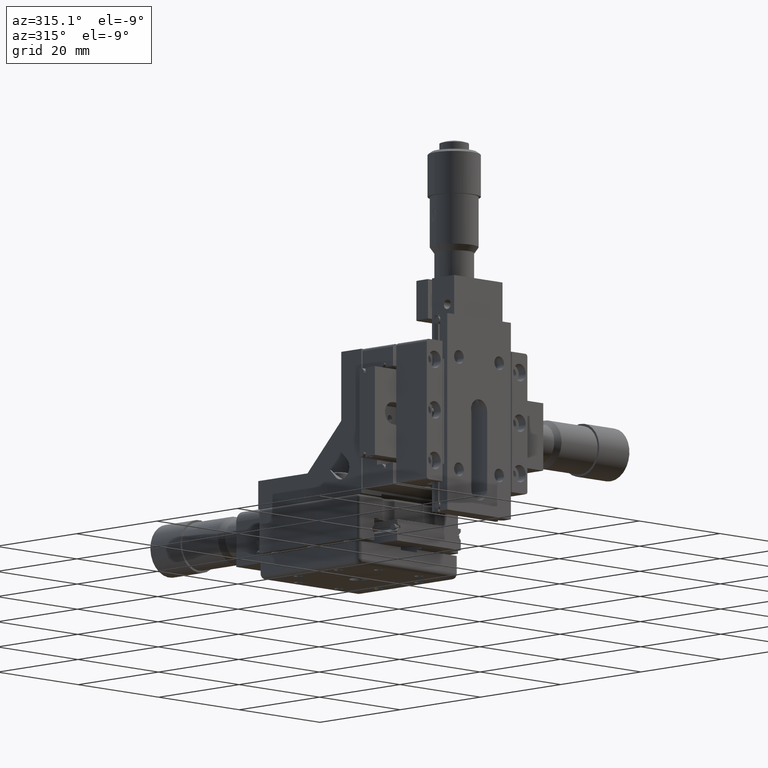
[diagram: clean part render]
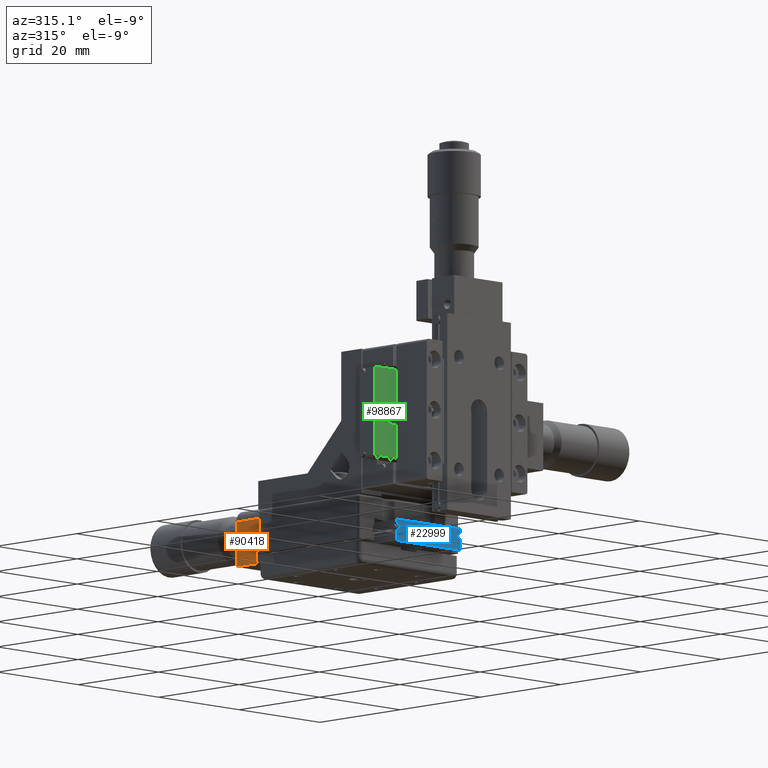
[diagram: same view with three faces highlighted in distinct colors, each labeled with its STEP entity id]
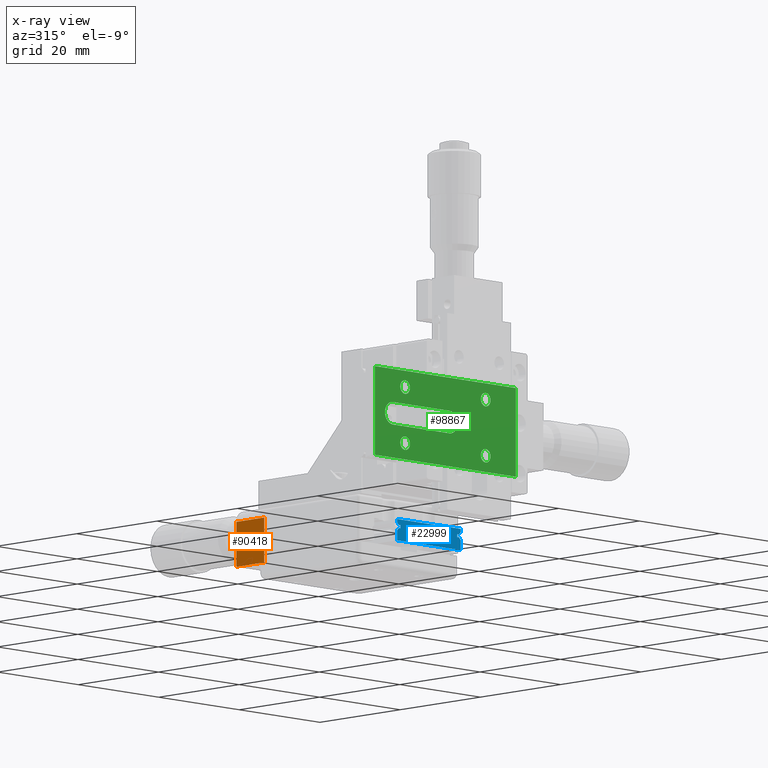
[diagram: x-ray of the same camera — body ghosted, the three highlighted faces saturated]
A machine part, auxiliary view with three faces highlighted in distinct colors.
The next image is the same camera in x-ray (body ghosted, the three faces saturated) — at least one of them is partly hidden behind the body in this view.
Their STEP definitions:

[orange] entity #90418 — the highlighted planar face has unit normal (1, -0, 0).
#378 = ORIENTED_EDGE ( 'NONE', *, *, #9242, .F. ) ;
#6458 = DIRECTION ( 'NONE',  ( 6.658216008616496400E-016, 1.000000000000000000, -1.583723319896012000E-015 ) ) ;
#9242 = EDGE_CURVE ( 'NONE', #35091, #83772, #18592, .T. ) ;
#15610 = CARTESIAN_POINT ( 'NONE',  ( -5.999999999999139400, 54.50000000000007800, -21.40000000000091900 ) ) ;
#15617 = EDGE_CURVE ( 'NONE', #112059, #75574, #77767, .T. ) ;
#16002 = DIRECTION ( 'NONE',  ( -1.176543750247916600E-015, 2.117645821199063000E-015, -1.000000000000000000 ) ) ;
#18592 = LINE ( 'NONE', #65776, #86832 ) ;
#20740 = CARTESIAN_POINT ( 'NONE',  ( -5.999999999999144700, 47.50000000000007800, -21.40000000000091900 ) ) ;
#24648 = CARTESIAN_POINT ( 'NONE',  ( -5.999999999999131400, 54.50000000000012100, -13.40000000000099200 ) ) ;
#26448 = CARTESIAN_POINT ( 'NONE',  ( -5.999999999999144700, 47.50000000000007800, -21.40000000000091900 ) ) ;
#31831 = EDGE_CURVE ( 'NONE', #35091, #112059, #103292, .T. ) ;
#35091 = VERTEX_POINT ( 'NONE', #61233 ) ;
#42196 = DIRECTION ( 'NONE',  ( 6.658216008616496400E-016, 1.000000000000000000, -1.583723319896012000E-015 ) ) ;
#44227 = ORIENTED_EDGE ( 'NONE', *, *, #82985, .F. ) ;
#47449 = VECTOR ( 'NONE', #42196, 1000.000000000000000 ) ;
#50554 = CARTESIAN_POINT ( 'NONE',  ( -5.999999999999135800, 47.50000000000012100, -13.40000000000097200 ) ) ;
#58742 = CARTESIAN_POINT ( 'NONE',  ( -5.999999999999144700, 47.50000000000007800, -21.40000000000091900 ) ) ;
#61233 = CARTESIAN_POINT ( 'NONE',  ( -5.999999999999135800, 47.50000000000012100, -13.40000000000097200 ) ) ;
#62405 = VECTOR ( 'NONE', #6458, 1000.000000000000000 ) ;
#64065 = VECTOR ( 'NONE', #16002, 1000.000000000000000 ) ;
#65776 = CARTESIAN_POINT ( 'NONE',  ( -5.999999999999144700, 47.50000000000007800, -21.40000000000091900 ) ) ;
#70281 = DIRECTION ( 'NONE',  ( 6.658216008616497400E-016, 1.000000000000000000, -1.583723319896012200E-015 ) ) ;
#73947 = ORIENTED_EDGE ( 'NONE', *, *, #15617, .T. ) ;
#75574 = VERTEX_POINT ( 'NONE', #88300 ) ;
#77767 = LINE ( 'NONE', #15610, #64065 ) ;
#79795 = PLANE ( 'NONE',  #89192 ) ;
#82985 = EDGE_CURVE ( 'NONE', #83772, #75574, #104750, .T. ) ;
#83772 = VERTEX_POINT ( 'NONE', #20740 ) ;
#86832 = VECTOR ( 'NONE', #108860, 1000.000000000000000 ) ;
#88270 = DIRECTION ( 'NONE',  ( 1.000000000000000000, -6.658216008616488500E-016, 5.795404501557302800E-016 ) ) ;
#88300 = CARTESIAN_POINT ( 'NONE',  ( -5.999999999999139400, 54.50000000000007800, -21.40000000000091900 ) ) ;
#89192 = AXIS2_PLACEMENT_3D ( 'NONE', #26448, #88270, #70281 ) ;
#90418 = ADVANCED_FACE ( 'NONE', ( #110518 ), #79795, .F. ) ;
#97440 = ORIENTED_EDGE ( 'NONE', *, *, #31831, .T. ) ;
#103292 = LINE ( 'NONE', #50554, #47449 ) ;
#104750 = LINE ( 'NONE', #58742, #62405 ) ;
#108860 = DIRECTION ( 'NONE',  ( -1.176543750247916600E-015, 2.117645821199063000E-015, -1.000000000000000000 ) ) ;
#110518 = FACE_OUTER_BOUND ( 'NONE', #113054, .T. ) ;
#112059 = VERTEX_POINT ( 'NONE', #24648 ) ;
#113054 = EDGE_LOOP ( 'NONE', ( #378, #97440, #73947, #44227 ) ) ;

[blue] entity #22999 — the highlighted planar face has unit normal (0, -1, 0).
#410 = CARTESIAN_POINT ( 'NONE',  ( -7.439999999998280900, 12.50000000000005000, -18.85000000000087200 ) ) ;
#999 = CARTESIAN_POINT ( 'NONE',  ( 7.900000000001725200, 12.50000000000005000, -17.80000000000087800 ) ) ;
#1367 = VECTOR ( 'NONE', #97283, 1000.000000000000000 ) ;
#1673 = VERTEX_POINT ( 'NONE', #20724 ) ;
#2241 = LINE ( 'NONE', #74608, #59626 ) ;
#5464 = VECTOR ( 'NONE', #49975, 1000.000000000000000 ) ;
#5595 = CARTESIAN_POINT ( 'NONE',  ( -7.899999999998278200, 12.50000000000002500, -17.80000000000087500 ) ) ;
#6962 = EDGE_CURVE ( 'NONE', #49206, #40940, #23608, .T. ) ;
#7200 = VECTOR ( 'NONE', #47539, 1000.000000000000000 ) ;
#8789 = ORIENTED_EDGE ( 'NONE', *, *, #6962, .T. ) ;
#9916 = EDGE_CURVE ( 'NONE', #66074, #63936, #58087, .T. ) ;
#9965 = CARTESIAN_POINT ( 'NONE',  ( 7.050000000001729100, 12.50000000000005000, -18.85000000000087900 ) ) ;
#10490 = DIRECTION ( 'NONE',  ( 1.000000000000000000, 3.122139134447230400E-019, -3.330669073875469600E-016 ) ) ;
#10895 = LINE ( 'NONE', #71834, #74967 ) ;
#11270 = CARTESIAN_POINT ( 'NONE',  ( -7.439999999998280900, 12.50000000000005000, -19.35000000000087200 ) ) ;
#12213 = VECTOR ( 'NONE', #50375, 1000.000000000000000 ) ;
#12313 = LINE ( 'NONE', #410, #1367 ) ;
#14181 = CARTESIAN_POINT ( 'NONE',  ( -7.899999999998265700, 12.50000000000005000, -18.39000000000087100 ) ) ;
#14253 = DIRECTION ( 'NONE',  ( 3.330669073875469600E-016, -3.872476710863205500E-015, 1.000000000000000000 ) ) ;
#15264 = VECTOR ( 'NONE', #18552, 1000.000000000000000 ) ;
#16583 = CARTESIAN_POINT ( 'NONE',  ( -7.899999999998280000, 12.50000000000002800, -21.60000000000087200 ) ) ;
#16668 = ORIENTED_EDGE ( 'NONE', *, *, #94349, .T. ) ;
#16737 = CARTESIAN_POINT ( 'NONE',  ( 7.440000000001727000, 12.50000000000005000, -18.85000000000087500 ) ) ;
#17379 = ORIENTED_EDGE ( 'NONE', *, *, #24406, .T. ) ;
#18013 = EDGE_CURVE ( 'NONE', #63936, #49206, #2241, .T. ) ;
#18204 = EDGE_CURVE ( 'NONE', #66859, #18975, #103261, .T. ) ;
#18552 = DIRECTION ( 'NONE',  ( -1.000000000000000000, -3.122139134447230400E-019, 3.330669073875469600E-016 ) ) ;
#18975 = VERTEX_POINT ( 'NONE', #26704 ) ;
#19413 = LINE ( 'NONE', #999, #15264 ) ;
#19739 = CARTESIAN_POINT ( 'NONE',  ( -7.439999999998280900, 12.50000000000005000, -18.85000000000087200 ) ) ;
#20724 = CARTESIAN_POINT ( 'NONE',  ( 7.900000000001723400, 12.50000000000005000, -19.81000000000087600 ) ) ;
#22226 = VECTOR ( 'NONE', #75297, 1000.000000000000000 ) ;
#22396 = DIRECTION ( 'NONE',  ( -1.000000000000000000, -3.122139134619241400E-019, 4.781075820148614200E-015 ) ) ;
#22999 = ADVANCED_FACE ( 'NONE', ( #101716 ), #99284, .T. ) ;
#23608 = LINE ( 'NONE', #11270, #7200 ) ;
#24406 = EDGE_CURVE ( 'NONE', #69206, #62733, #86042, .T. ) ;
#26031 = ORIENTED_EDGE ( 'NONE', *, *, #91000, .T. ) ;
#26704 = CARTESIAN_POINT ( 'NONE',  ( -7.899999999998265700, 12.50000000000005000, -18.39000000000087100 ) ) ;
#27351 = VECTOR ( 'NONE', #86833, 1000.000000000000000 ) ;
#28637 = EDGE_LOOP ( 'NONE', ( #33459, #8789, #101765, #84042, #109002, #65898, #16668, #60646, #17379, #47360, #40051, #104639, #75306, #72437, #26031, #37749 ) ) ;
#28949 = LINE ( 'NONE', #73821, #72543 ) ;
#29737 = EDGE_CURVE ( 'NONE', #18975, #113162, #74619, .T. ) ;
#32369 = CARTESIAN_POINT ( 'NONE',  ( -7.899999999998280000, 12.50000000000005000, -19.81000000000088000 ) ) ;
#32729 = DIRECTION ( 'NONE',  ( -3.330669073875469600E-016, 3.872476710863205500E-015, -1.000000000000000000 ) ) ;
#32874 = CARTESIAN_POINT ( 'NONE',  ( -7.049999999998282100, 12.50000000000005000, -18.85000000000087200 ) ) ;
#33459 = ORIENTED_EDGE ( 'NONE', *, *, #18013, .T. ) ;
#35812 = EDGE_CURVE ( 'NONE', #65957, #100982, #10895, .T. ) ;
#37310 = LINE ( 'NONE', #49818, #22226 ) ;
#37749 = ORIENTED_EDGE ( 'NONE', *, *, #9916, .T. ) ;
#38249 = EDGE_CURVE ( 'NONE', #100982, #1673, #92625, .T. ) ;
#39171 = VERTEX_POINT ( 'NONE', #43656 ) ;
#40051 = ORIENTED_EDGE ( 'NONE', *, *, #112937, .T. ) ;
#40261 = CARTESIAN_POINT ( 'NONE',  ( 7.900000000001725200, 12.50000000000005000, -17.80000000000087800 ) ) ;
#40940 = VERTEX_POINT ( 'NONE', #32369 ) ;
#41210 = CARTESIAN_POINT ( 'NONE',  ( 7.900000000001737600, 12.50000000000005000, -18.39000000000087800 ) ) ;
#43655 = EDGE_CURVE ( 'NONE', #58960, #66859, #19413, .T. ) ;
#43656 = CARTESIAN_POINT ( 'NONE',  ( 7.050000000001729100, 12.50000000000005000, -19.35000000000087900 ) ) ;
#45219 = CARTESIAN_POINT ( 'NONE',  ( -7.049999999998282100, 12.50000000000005000, -19.35000000000087500 ) ) ;
#45873 = VECTOR ( 'NONE', #111334, 1000.000000000000000 ) ;
#46326 = LINE ( 'NONE', #90423, #83146 ) ;
#47360 = ORIENTED_EDGE ( 'NONE', *, *, #67931, .T. ) ;
#47539 = DIRECTION ( 'NONE',  ( -0.7071067811865438000, 2.738033773662987800E-015, -0.7071067811865513500 ) ) ;
#49206 = VERTEX_POINT ( 'NONE', #71364 ) ;
#49818 = CARTESIAN_POINT ( 'NONE',  ( -7.899999999998280000, 12.50000000000005000, -19.81000000000088000 ) ) ;
#49975 = DIRECTION ( 'NONE',  ( 3.330669073875469600E-016, -3.872476710863205500E-015, 1.000000000000000000 ) ) ;
#50042 = CARTESIAN_POINT ( 'NONE',  ( -7.049999999998282100, 12.50000000000005000, -18.85000000000087200 ) ) ;
#50375 = DIRECTION ( 'NONE',  ( -0.7071067811865483500, -2.738475310813724600E-015, 0.7071067811865468000 ) ) ;
#50463 = AXIS2_PLACEMENT_3D ( 'NONE', #91321, #107618, #82883 ) ;
#50794 = EDGE_CURVE ( 'NONE', #1673, #62064, #96822, .T. ) ;
#54657 = LINE ( 'NONE', #41210, #5464 ) ;
#56596 = EDGE_CURVE ( 'NONE', #39171, #69206, #28949, .T. ) ;
#58087 = LINE ( 'NONE', #32874, #45873 ) ;
#58960 = VERTEX_POINT ( 'NONE', #40261 ) ;
#59626 = VECTOR ( 'NONE', #22396, 1000.000000000000000 ) ;
#60646 = ORIENTED_EDGE ( 'NONE', *, *, #56596, .T. ) ;
#62064 = VERTEX_POINT ( 'NONE', #80199 ) ;
#62733 = VERTEX_POINT ( 'NONE', #16737 ) ;
#63936 = VERTEX_POINT ( 'NONE', #45219 ) ;
#65898 = ORIENTED_EDGE ( 'NONE', *, *, #50794, .T. ) ;
#65957 = VERTEX_POINT ( 'NONE', #16583 ) ;
#66074 = VERTEX_POINT ( 'NONE', #50042 ) ;
#66859 = VERTEX_POINT ( 'NONE', #81973 ) ;
#67447 = CARTESIAN_POINT ( 'NONE',  ( 7.900000000001723400, 12.50000000000005000, -19.81000000000087600 ) ) ;
#67681 = CARTESIAN_POINT ( 'NONE',  ( 7.050000000001729100, 12.50000000000005000, -18.85000000000087900 ) ) ;
#67911 = VECTOR ( 'NONE', #14253, 1000.000000000000000 ) ;
#67931 = EDGE_CURVE ( 'NONE', #62733, #81449, #46326, .T. ) ;
#69206 = VERTEX_POINT ( 'NONE', #9965 ) ;
#71364 = CARTESIAN_POINT ( 'NONE',  ( -7.439999999998280900, 12.50000000000005000, -19.35000000000087200 ) ) ;
#71834 = CARTESIAN_POINT ( 'NONE',  ( -7.899999999998280000, 12.50000000000002800, -21.60000000000087200 ) ) ;
#72437 = ORIENTED_EDGE ( 'NONE', *, *, #29737, .T. ) ;
#72543 = VECTOR ( 'NONE', #91481, 1000.000000000000000 ) ;
#73821 = CARTESIAN_POINT ( 'NONE',  ( 7.050000000001729100, 12.50000000000005000, -19.35000000000087900 ) ) ;
#74094 = CARTESIAN_POINT ( 'NONE',  ( 7.900000000001723400, 12.50000000000002800, -21.60000000000087900 ) ) ;
#74608 = CARTESIAN_POINT ( 'NONE',  ( -7.049999999998282100, 12.50000000000005000, -19.35000000000087500 ) ) ;
#74619 = LINE ( 'NONE', #14181, #84183 ) ;
#74776 = CARTESIAN_POINT ( 'NONE',  ( 7.900000000001723400, 12.50000000000002800, -21.60000000000087900 ) ) ;
#74967 = VECTOR ( 'NONE', #10490, 1000.000000000000000 ) ;
#75297 = DIRECTION ( 'NONE',  ( -3.330669073875469600E-016, 3.872476710863205500E-015, -1.000000000000000000 ) ) ;
#75306 = ORIENTED_EDGE ( 'NONE', *, *, #18204, .T. ) ;
#77490 = CARTESIAN_POINT ( 'NONE',  ( 7.440000000001727000, 12.50000000000005000, -19.35000000000087900 ) ) ;
#78640 = LINE ( 'NONE', #77490, #107245 ) ;
#80199 = CARTESIAN_POINT ( 'NONE',  ( 7.440000000001727000, 12.50000000000005000, -19.35000000000087900 ) ) ;
#81449 = VERTEX_POINT ( 'NONE', #90264 ) ;
#81973 = CARTESIAN_POINT ( 'NONE',  ( -7.899999999998278200, 12.50000000000002500, -17.80000000000087500 ) ) ;
#82883 = DIRECTION ( 'NONE',  ( 1.000000000000000000, 3.122139134447230400E-019, -3.330669073875469600E-016 ) ) ;
#83146 = VECTOR ( 'NONE', #89670, 1000.000000000000000 ) ;
#84042 = ORIENTED_EDGE ( 'NONE', *, *, #35812, .T. ) ;
#84183 = VECTOR ( 'NONE', #101491, 1000.000000000000100 ) ;
#86042 = LINE ( 'NONE', #67681, #27351 ) ;
#86833 = DIRECTION ( 'NONE',  ( 1.000000000000000000, 3.122139134275219300E-019, 4.114942005373520300E-015 ) ) ;
#87057 = EDGE_CURVE ( 'NONE', #40940, #65957, #37310, .T. ) ;
#89670 = DIRECTION ( 'NONE',  ( 0.7071067811865468000, -2.738033773662976400E-015, 0.7071067811865483500 ) ) ;
#90264 = CARTESIAN_POINT ( 'NONE',  ( 7.900000000001737600, 12.50000000000005000, -18.39000000000087800 ) ) ;
#90423 = CARTESIAN_POINT ( 'NONE',  ( 7.440000000001727000, 12.50000000000005000, -18.85000000000087500 ) ) ;
#91000 = EDGE_CURVE ( 'NONE', #113162, #66074, #12313, .T. ) ;
#91321 = CARTESIAN_POINT ( 'NONE',  ( 1.720851151912477900E-012, 12.50000000000002800, -21.60000000000085100 ) ) ;
#91481 = DIRECTION ( 'NONE',  ( 3.330669073875469600E-016, -3.872476710863205500E-015, 1.000000000000000000 ) ) ;
#92625 = LINE ( 'NONE', #74094, #67911 ) ;
#94349 = EDGE_CURVE ( 'NONE', #62064, #39171, #78640, .T. ) ;
#95462 = DIRECTION ( 'NONE',  ( -1.000000000000000000, -3.122139134619241400E-019, 4.781075820148614200E-015 ) ) ;
#96822 = LINE ( 'NONE', #67447, #12213 ) ;
#97283 = DIRECTION ( 'NONE',  ( 1.000000000000000000, 3.122139134275219300E-019, 4.114942005373520300E-015 ) ) ;
#99284 = PLANE ( 'NONE',  #50463 ) ;
#100982 = VERTEX_POINT ( 'NONE', #74776 ) ;
#101491 = DIRECTION ( 'NONE',  ( 0.7071067811865450200, 2.738475310813735600E-015, -0.7071067811865501300 ) ) ;
#101716 = FACE_OUTER_BOUND ( 'NONE', #28637, .T. ) ;
#101765 = ORIENTED_EDGE ( 'NONE', *, *, #87057, .T. ) ;
#103261 = LINE ( 'NONE', #5595, #112743 ) ;
#104639 = ORIENTED_EDGE ( 'NONE', *, *, #43655, .T. ) ;
#107245 = VECTOR ( 'NONE', #95462, 1000.000000000000000 ) ;
#107618 = DIRECTION ( 'NONE',  ( 3.122139134458737800E-019, -1.000000000000000000, 3.454995251662828900E-015 ) ) ;
#109002 = ORIENTED_EDGE ( 'NONE', *, *, #38249, .T. ) ;
#111334 = DIRECTION ( 'NONE',  ( -3.330669073875469600E-016, 3.872476710863205500E-015, -1.000000000000000000 ) ) ;
#112743 = VECTOR ( 'NONE', #32729, 1000.000000000000000 ) ;
#112937 = EDGE_CURVE ( 'NONE', #81449, #58960, #54657, .T. ) ;
#113162 = VERTEX_POINT ( 'NONE', #19739 ) ;

[green] entity #98867 — the highlighted planar face has unit normal (0, 1, 0).
#724 = CARTESIAN_POINT ( 'NONE',  ( 17.55000000000086400, 8.399999999999961300, -7.900000000000005700 ) ) ;
#796 = CARTESIAN_POINT ( 'NONE',  ( 17.50000000000085600, 8.399999999999982600, 7.899999999999997700 ) ) ;
#802 = ORIENTED_EDGE ( 'NONE', *, *, #80588, .F. ) ;
#1526 = VERTEX_POINT ( 'NONE', #58339 ) ;
#1607 = AXIS2_PLACEMENT_3D ( 'NONE', #13835, #100385, #21450 ) ;
#1640 = VERTEX_POINT ( 'NONE', #8337 ) ;
#1642 = CARTESIAN_POINT ( 'NONE',  ( -17.49999999999918300, 8.400000000000075000, 7.900000000000003900 ) ) ;
#1806 = AXIS2_PLACEMENT_3D ( 'NONE', #93483, #75111, #22899 ) ;
#2030 = CARTESIAN_POINT ( 'NONE',  ( 11.20000000000086600, 8.399999999999991500, 4.999999999999994700 ) ) ;
#3836 = CARTESIAN_POINT ( 'NONE',  ( -12.99999999999914000, 8.400000000000055400, 2.000000000000000400 ) ) ;
#6484 = DIRECTION ( 'NONE',  ( -1.000000000000000000, 3.469446951953615000E-015, 1.665334536937730900E-016 ) ) ;
#6853 = DIRECTION ( 'NONE',  ( 3.619663162951473700E-015, -1.000000000000000000, -1.451879441389884900E-029 ) ) ;
#7991 = EDGE_CURVE ( 'NONE', #109141, #47400, #35318, .T. ) ;
#8227 = DIRECTION ( 'NONE',  ( 3.619663162951473700E-015, -1.000000000000000000, -1.451879441389884900E-029 ) ) ;
#8337 = CARTESIAN_POINT ( 'NONE',  ( -8.799999999999139200, 8.400000000000057200, 5.000000000000000900 ) ) ;
#8739 = CARTESIAN_POINT ( 'NONE',  ( 1.000000000000862600, 8.400000000000030600, 1.999999999999999600 ) ) ;
#9976 = CIRCLE ( 'NONE', #63883, 1.999999999999999600 ) ;
#12937 = AXIS2_PLACEMENT_3D ( 'NONE', #48719, #91839, #109628 ) ;
#13490 = CARTESIAN_POINT ( 'NONE',  ( 10.00000000000086500, 8.399999999999986100, -5.000000000000005300 ) ) ;
#13810 = VERTEX_POINT ( 'NONE', #91199 ) ;
#13835 = CARTESIAN_POINT ( 'NONE',  ( -9.999999999999138500, 8.400000000000051900, -4.999999999999999100 ) ) ;
#15568 = FACE_BOUND ( 'NONE', #108517, .T. ) ;
#16921 = CIRCLE ( 'NONE', #45787, 1.199999999999999700 ) ;
#18049 = CARTESIAN_POINT ( 'NONE',  ( 17.50000000000085600, 8.399999999999961300, -7.900000000000005700 ) ) ;
#18884 = DIRECTION ( 'NONE',  ( 1.665334536937737800E-016, -1.391599940616440900E-029, 1.000000000000000000 ) ) ;
#20109 = EDGE_CURVE ( 'NONE', #96543, #35495, #77675, .T. ) ;
#20307 = CIRCLE ( 'NONE', #1607, 1.199999999999999700 ) ;
#21450 = DIRECTION ( 'NONE',  ( -1.000000000000000000, 2.891205793294679000E-015, 0.0000000000000000000 ) ) ;
#21504 = VECTOR ( 'NONE', #65231, 1000.000000000000000 ) ;
#21781 = DIRECTION ( 'NONE',  ( -1.000000000000000000, 3.374741892187014100E-015, 1.665334536937730900E-016 ) ) ;
#22615 = DIRECTION ( 'NONE',  ( -1.000000000000000000, 2.891205793294679000E-015, 0.0000000000000000000 ) ) ;
#22899 = DIRECTION ( 'NONE',  ( -1.000000000000000000, 2.891205793294679000E-015, 0.0000000000000000000 ) ) ;
#24274 = ORIENTED_EDGE ( 'NONE', *, *, #47280, .F. ) ;
#24828 = CIRCLE ( 'NONE', #25372, 1.199999999999999700 ) ;
#25372 = AXIS2_PLACEMENT_3D ( 'NONE', #25425, #8227, #69255 ) ;
#25425 = CARTESIAN_POINT ( 'NONE',  ( 10.00000000000086500, 8.399999999999986100, -5.000000000000005300 ) ) ;
#25926 = LINE ( 'NONE', #92054, #103704 ) ;
#27726 = CARTESIAN_POINT ( 'NONE',  ( 1.000000000000861800, 8.400000000000005700, -1.999999999999999600 ) ) ;
#27827 = FACE_BOUND ( 'NONE', #105947, .T. ) ;
#28232 = CARTESIAN_POINT ( 'NONE',  ( -9.999999999999138500, 8.400000000000051900, -4.999999999999999100 ) ) ;
#28859 = ORIENTED_EDGE ( 'NONE', *, *, #67559, .F. ) ;
#29831 = DIRECTION ( 'NONE',  ( 1.000000000000000000, -3.374741892187014100E-015, -1.164742905298670400E-017 ) ) ;
#31210 = EDGE_CURVE ( 'NONE', #86853, #13810, #55582, .T. ) ;
#31237 = AXIS2_PLACEMENT_3D ( 'NONE', #96301, #78357, #44863 ) ;
#34308 = CARTESIAN_POINT ( 'NONE',  ( 8.800000000000865800, 8.399999999999989700, 4.999999999999994700 ) ) ;
#35268 = EDGE_CURVE ( 'NONE', #93625, #52575, #103820, .T. ) ;
#35318 = LINE ( 'NONE', #724, #53010 ) ;
#35495 = VERTEX_POINT ( 'NONE', #82280 ) ;
#35927 = EDGE_CURVE ( 'NONE', #47400, #42730, #94252, .T. ) ;
#37090 = EDGE_LOOP ( 'NONE', ( #78682, #112926 ) ) ;
#37896 = CARTESIAN_POINT ( 'NONE',  ( -12.99999999999914000, 8.400000000000075000, -1.999999999999999600 ) ) ;
#38582 = ORIENTED_EDGE ( 'NONE', *, *, #31210, .F. ) ;
#39241 = DIRECTION ( 'NONE',  ( 3.374741892187014100E-015, 1.000000000000000000, 1.335399198353345200E-029 ) ) ;
#39612 = CARTESIAN_POINT ( 'NONE',  ( 17.55000000000086400, 8.399999999999982600, 7.899999999999997700 ) ) ;
#41335 = CIRCLE ( 'NONE', #12937, 1.199999999999999700 ) ;
#41627 = VERTEX_POINT ( 'NONE', #112224 ) ;
#42256 = EDGE_CURVE ( 'NONE', #1640, #1526, #16921, .T. ) ;
#42730 = VERTEX_POINT ( 'NONE', #1642 ) ;
#43542 = DIRECTION ( 'NONE',  ( -1.000000000000000000, 3.374741892187014100E-015, 1.665334536937730900E-016 ) ) ;
#43993 = ORIENTED_EDGE ( 'NONE', *, *, #52250, .F. ) ;
#44863 = DIRECTION ( 'NONE',  ( -1.000000000000000000, 3.469446951953614200E-015, 1.665334536937731100E-016 ) ) ;
#45208 = ORIENTED_EDGE ( 'NONE', *, *, #42256, .F. ) ;
#45787 = AXIS2_PLACEMENT_3D ( 'NONE', #100706, #57633, #110191 ) ;
#47280 = EDGE_CURVE ( 'NONE', #52575, #93625, #24828, .T. ) ;
#47400 = VERTEX_POINT ( 'NONE', #87610 ) ;
#48101 = AXIS2_PLACEMENT_3D ( 'NONE', #39612, #39241, #73813 ) ;
#48719 = CARTESIAN_POINT ( 'NONE',  ( 10.00000000000086500, 8.399999999999986100, 4.999999999999994700 ) ) ;
#49804 = DIRECTION ( 'NONE',  ( -1.000000000000000000, 2.891205793294679000E-015, 0.0000000000000000000 ) ) ;
#50187 = DIRECTION ( 'NONE',  ( 3.619663162951473700E-015, -1.000000000000000000, -1.451879441389884900E-029 ) ) ;
#52250 = EDGE_CURVE ( 'NONE', #35495, #81371, #106093, .T. ) ;
#52575 = VERTEX_POINT ( 'NONE', #95756 ) ;
#53010 = VECTOR ( 'NONE', #43542, 1000.000000000000000 ) ;
#53784 = FACE_BOUND ( 'NONE', #37090, .T. ) ;
#53809 = DIRECTION ( 'NONE',  ( 3.619663162951473700E-015, -1.000000000000000000, -1.451879441389884900E-029 ) ) ;
#54271 = VECTOR ( 'NONE', #29831, 1000.000000000000000 ) ;
#55070 = EDGE_CURVE ( 'NONE', #113051, #96543, #95344, .T. ) ;
#55582 = CIRCLE ( 'NONE', #69326, 1.199999999999999700 ) ;
#56031 = EDGE_CURVE ( 'NONE', #1526, #1640, #93222, .T. ) ;
#56865 = ORIENTED_EDGE ( 'NONE', *, *, #98611, .F. ) ;
#56910 = DIRECTION ( 'NONE',  ( -1.665334536937737800E-016, 1.391599940616440900E-029, -1.000000000000000000 ) ) ;
#57633 = DIRECTION ( 'NONE',  ( 3.619663162951473700E-015, -1.000000000000000000, -1.451879441389884900E-029 ) ) ;
#57789 = CARTESIAN_POINT ( 'NONE',  ( 10.00000000000086500, 8.399999999999986100, 4.999999999999994700 ) ) ;
#57991 = CARTESIAN_POINT ( 'NONE',  ( 1.000000000000862200, 8.400000000000030600, -1.255190709069157700E-016 ) ) ;
#58339 = CARTESIAN_POINT ( 'NONE',  ( -11.19999999999913800, 8.400000000000055400, 5.000000000000000900 ) ) ;
#59230 = FACE_BOUND ( 'NONE', #110525, .T. ) ;
#61173 = CARTESIAN_POINT ( 'NONE',  ( 1.000000000000862200, 8.400000000000030600, -1.255190709069157700E-016 ) ) ;
#63230 = VECTOR ( 'NONE', #21781, 1000.000000000000000 ) ;
#63883 = AXIS2_PLACEMENT_3D ( 'NONE', #57991, #6853, #6484 ) ;
#65127 = VERTEX_POINT ( 'NONE', #796 ) ;
#65231 = DIRECTION ( 'NONE',  ( -1.000000000000000000, 3.374741892187014100E-015, 7.360183890930122000E-017 ) ) ;
#67559 = EDGE_CURVE ( 'NONE', #13810, #86853, #20307, .T. ) ;
#68696 = FACE_OUTER_BOUND ( 'NONE', #78153, .T. ) ;
#69255 = DIRECTION ( 'NONE',  ( -1.000000000000000000, 2.891205793294679000E-015, 0.0000000000000000000 ) ) ;
#69326 = AXIS2_PLACEMENT_3D ( 'NONE', #28232, #53809, #89659 ) ;
#69691 = VECTOR ( 'NONE', #18884, 1000.000000000000000 ) ;
#71617 = ORIENTED_EDGE ( 'NONE', *, *, #7991, .F. ) ;
#73813 = DIRECTION ( 'NONE',  ( -1.000000000000000000, 3.374741892187014100E-015, 1.665334536937730900E-016 ) ) ;
#74184 = AXIS2_PLACEMENT_3D ( 'NONE', #61173, #97008, #86776 ) ;
#74542 = ORIENTED_EDGE ( 'NONE', *, *, #98808, .T. ) ;
#75111 = DIRECTION ( 'NONE',  ( 3.619663162951473700E-015, -1.000000000000000000, -1.451879441389884900E-029 ) ) ;
#77063 = ORIENTED_EDGE ( 'NONE', *, *, #56031, .F. ) ;
#77675 = CIRCLE ( 'NONE', #31237, 2.000000000000000000 ) ;
#78153 = EDGE_LOOP ( 'NONE', ( #802, #74542, #96234, #71617 ) ) ;
#78357 = DIRECTION ( 'NONE',  ( 3.619663162951473700E-015, -1.000000000000000000, -1.451879441389884900E-029 ) ) ;
#78682 = ORIENTED_EDGE ( 'NONE', *, *, #91209, .F. ) ;
#79523 = CARTESIAN_POINT ( 'NONE',  ( -17.49999999999918300, 8.400000000000078500, -7.899999999999999500 ) ) ;
#80489 = CIRCLE ( 'NONE', #91346, 1.199999999999999700 ) ;
#80588 = EDGE_CURVE ( 'NONE', #65127, #109141, #25926, .T. ) ;
#81048 = EDGE_LOOP ( 'NONE', ( #24274, #95164 ) ) ;
#81371 = VERTEX_POINT ( 'NONE', #27726 ) ;
#81875 = VERTEX_POINT ( 'NONE', #2030 ) ;
#82280 = CARTESIAN_POINT ( 'NONE',  ( -12.99999999999914000, 8.400000000000075000, -1.999999999999999600 ) ) ;
#86535 = LINE ( 'NONE', #99983, #63230 ) ;
#86638 = CIRCLE ( 'NONE', #74184, 1.999999999999999600 ) ;
#86776 = DIRECTION ( 'NONE',  ( -1.000000000000000000, 3.469446951953615000E-015, 1.665334536937730900E-016 ) ) ;
#86853 = VERTEX_POINT ( 'NONE', #98637 ) ;
#87610 = CARTESIAN_POINT ( 'NONE',  ( -17.49999999999918300, 8.400000000000078500, -7.899999999999999500 ) ) ;
#89659 = DIRECTION ( 'NONE',  ( -1.000000000000000000, 2.891205793294679000E-015, 0.0000000000000000000 ) ) ;
#91199 = CARTESIAN_POINT ( 'NONE',  ( -8.799999999999139200, 8.400000000000057200, -4.999999999999999100 ) ) ;
#91209 = EDGE_CURVE ( 'NONE', #101767, #81875, #80489, .T. ) ;
#91346 = AXIS2_PLACEMENT_3D ( 'NONE', #57789, #50187, #49804 ) ;
#91839 = DIRECTION ( 'NONE',  ( 3.619663162951473700E-015, -1.000000000000000000, -1.451879441389884900E-029 ) ) ;
#92054 = CARTESIAN_POINT ( 'NONE',  ( 17.50000000000085600, 8.399999999999982600, 7.899999999999997700 ) ) ;
#92097 = DIRECTION ( 'NONE',  ( 3.619663162951473700E-015, -1.000000000000000000, -1.451879441389884900E-029 ) ) ;
#93222 = CIRCLE ( 'NONE', #1806, 1.199999999999999700 ) ;
#93483 = CARTESIAN_POINT ( 'NONE',  ( -9.999999999999138500, 8.400000000000051900, 5.000000000000000900 ) ) ;
#93625 = VERTEX_POINT ( 'NONE', #112107 ) ;
#94252 = LINE ( 'NONE', #79523, #69691 ) ;
#95164 = ORIENTED_EDGE ( 'NONE', *, *, #35268, .F. ) ;
#95344 = LINE ( 'NONE', #3836, #21504 ) ;
#95756 = CARTESIAN_POINT ( 'NONE',  ( 8.800000000000865800, 8.399999999999989700, -5.000000000000005300 ) ) ;
#96234 = ORIENTED_EDGE ( 'NONE', *, *, #35927, .F. ) ;
#96301 = CARTESIAN_POINT ( 'NONE',  ( -12.99999999999914000, 8.400000000000055400, 4.302114220422481600E-016 ) ) ;
#96543 = VERTEX_POINT ( 'NONE', #96633 ) ;
#96633 = CARTESIAN_POINT ( 'NONE',  ( -12.99999999999914000, 8.400000000000055400, 2.000000000000000400 ) ) ;
#97008 = DIRECTION ( 'NONE',  ( 3.619663162951473700E-015, -1.000000000000000000, -1.451879441389884900E-029 ) ) ;
#97433 = FACE_BOUND ( 'NONE', #81048, .T. ) ;
#97949 = ORIENTED_EDGE ( 'NONE', *, *, #20109, .F. ) ;
#98611 = EDGE_CURVE ( 'NONE', #81371, #41627, #86638, .T. ) ;
#98637 = CARTESIAN_POINT ( 'NONE',  ( -11.19999999999913800, 8.400000000000055400, -4.999999999999999100 ) ) ;
#98808 = EDGE_CURVE ( 'NONE', #65127, #42730, #86535, .T. ) ;
#98867 = ADVANCED_FACE ( 'NONE', ( #15568, #97433, #59230, #53784, #27827, #68696 ), #108148, .F. ) ;
#99983 = CARTESIAN_POINT ( 'NONE',  ( 17.55000000000086400, 8.399999999999982600, 7.899999999999997700 ) ) ;
#100385 = DIRECTION ( 'NONE',  ( 3.619663162951473700E-015, -1.000000000000000000, -1.451879441389884900E-029 ) ) ;
#100706 = CARTESIAN_POINT ( 'NONE',  ( -9.999999999999138500, 8.400000000000051900, 5.000000000000000900 ) ) ;
#100918 = ORIENTED_EDGE ( 'NONE', *, *, #55070, .F. ) ;
#101679 = AXIS2_PLACEMENT_3D ( 'NONE', #13490, #92097, #22615 ) ;
#101767 = VERTEX_POINT ( 'NONE', #34308 ) ;
#103704 = VECTOR ( 'NONE', #56910, 1000.000000000000000 ) ;
#103820 = CIRCLE ( 'NONE', #101679, 1.199999999999999700 ) ;
#105947 = EDGE_LOOP ( 'NONE', ( #38582, #28859 ) ) ;
#106093 = LINE ( 'NONE', #37896, #54271 ) ;
#108148 = PLANE ( 'NONE',  #48101 ) ;
#108517 = EDGE_LOOP ( 'NONE', ( #77063, #45208 ) ) ;
#109141 = VERTEX_POINT ( 'NONE', #18049 ) ;
#109316 = EDGE_CURVE ( 'NONE', #41627, #113051, #9976, .T. ) ;
#109628 = DIRECTION ( 'NONE',  ( -1.000000000000000000, 2.891205793294679000E-015, 0.0000000000000000000 ) ) ;
#110191 = DIRECTION ( 'NONE',  ( -1.000000000000000000, 2.891205793294679000E-015, 0.0000000000000000000 ) ) ;
#110525 = EDGE_LOOP ( 'NONE', ( #100918, #111846, #56865, #43993, #97949 ) ) ;
#110967 = EDGE_CURVE ( 'NONE', #81875, #101767, #41335, .T. ) ;
#111846 = ORIENTED_EDGE ( 'NONE', *, *, #109316, .F. ) ;
#112107 = CARTESIAN_POINT ( 'NONE',  ( 11.20000000000086600, 8.399999999999991500, -5.000000000000005300 ) ) ;
#112224 = CARTESIAN_POINT ( 'NONE',  ( 3.000000000000862000, 8.400000000000037700, -4.585859782958159500E-016 ) ) ;
#112926 = ORIENTED_EDGE ( 'NONE', *, *, #110967, .F. ) ;
#113051 = VERTEX_POINT ( 'NONE', #8739 ) ;